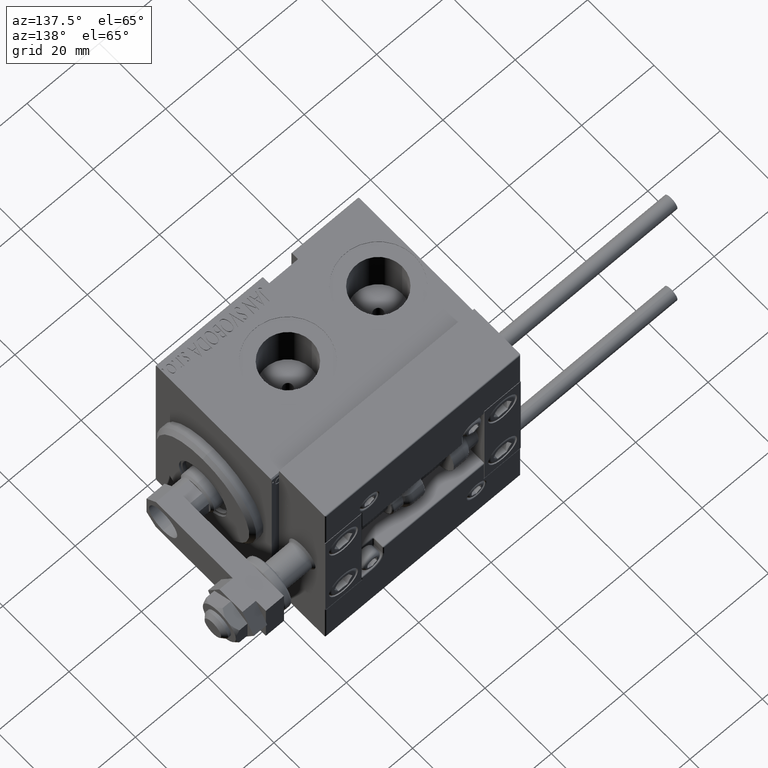
[diagram: clean part render]
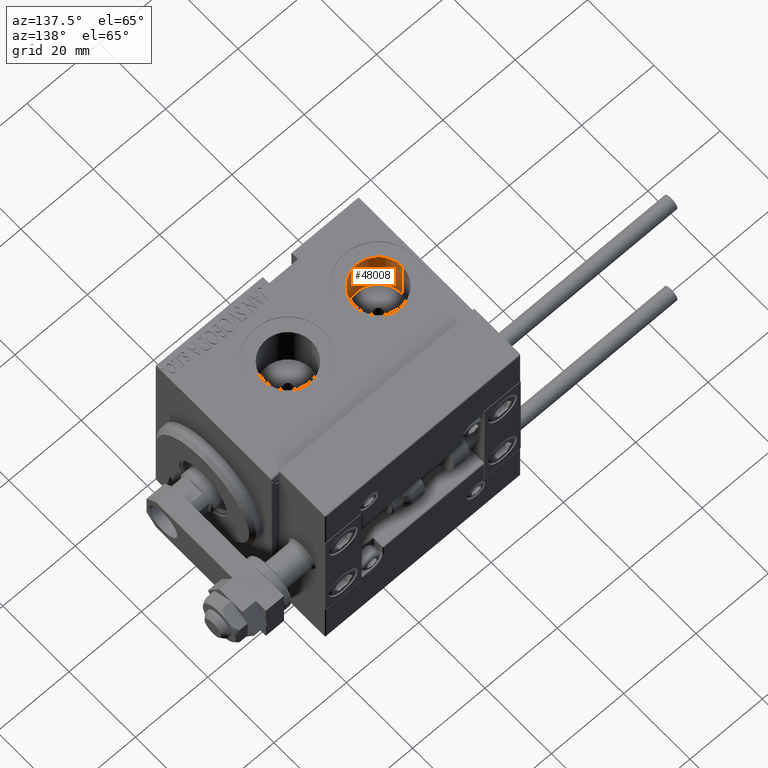
[diagram: same view with one face highlighted and labeled with its STEP entity id]
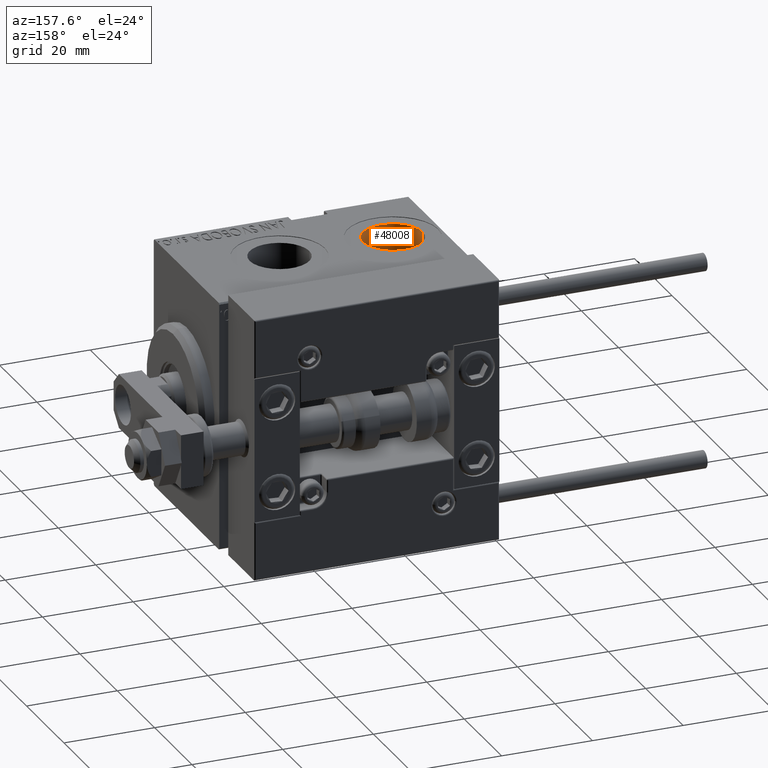
[diagram: same view with one face highlighted and labeled with its STEP entity id]
A machine part, auxiliary view. The second image highlights one B-rep face of the part: STEP entity #48008.
A second angle (auxiliary view) of the same face is appended — the face is thin or edge-on in the first view.
In plain terms, the highlighted cylindrical surface (edge-blend (fillet) strip) has radius 6.58 mm, axis along (0, 0, 1).
Its self-contained STEP definition (entity closure, byte-faithful):
#1870 = LINE ( 'NONE', #29590, #9685 ) ;
#2786 = DIRECTION ( 'NONE',  ( -0.000000000000000000, -0.000000000000000000, 1.000000000000000000 ) ) ;
#4565 = CARTESIAN_POINT ( 'NONE',  ( 45.50000000000000000, 0.000000000000000000, 14.23999999999999666 ) ) ;
#5557 = DIRECTION ( 'NONE',  ( 0.000000000000000000, 0.000000000000000000, 1.000000000000000000 ) ) ;
#6546 = AXIS2_PLACEMENT_3D ( 'NONE', #14690, #2786, #15195 ) ;
#8510 = VERTEX_POINT ( 'NONE', #18065 ) ;
#9202 = AXIS2_PLACEMENT_3D ( 'NONE', #16954, #5557, #32258 ) ;
#9299 = CARTESIAN_POINT ( 'NONE',  ( 38.91999999999999460, 8.058175938389585489E-16, 14.23999999999999666 ) ) ;
#9685 = VECTOR ( 'NONE', #20779, 1000.000000000000000 ) ;
#12066 = EDGE_CURVE ( 'NONE', #32979, #8510, #33183, .T. ) ;
#12373 = CARTESIAN_POINT ( 'NONE',  ( 38.91999999999999460, 8.058175938389585489E-16, 14.23999999999999666 ) ) ;
#14162 = CARTESIAN_POINT ( 'NONE',  ( 52.07999999999999829, 0.000000000000000000, 14.23999999999999666 ) ) ;
#14231 = VERTEX_POINT ( 'NONE', #9299 ) ;
#14690 = CARTESIAN_POINT ( 'NONE',  ( 45.50000000000000000, 0.000000000000000000, 14.23999999999999666 ) ) ;
#15019 = DIRECTION ( 'NONE',  ( -0.000000000000000000, -0.000000000000000000, 1.000000000000000000 ) ) ;
#15195 = DIRECTION ( 'NONE',  ( 1.000000000000000000, 0.000000000000000000, 0.000000000000000000 ) ) ;
#16954 = CARTESIAN_POINT ( 'NONE',  ( 45.50000000000000000, 0.000000000000000000, 27.39999999999999858 ) ) ;
#18065 = CARTESIAN_POINT ( 'NONE',  ( 38.91999999999999460, 8.058175938389585489E-16, 27.39999999999999858 ) ) ;
#18688 = VECTOR ( 'NONE', #15019, 1000.000000000000000 ) ;
#19080 = FACE_OUTER_BOUND ( 'NONE', #39201, .T. ) ;
#20779 = DIRECTION ( 'NONE',  ( -0.000000000000000000, -0.000000000000000000, 1.000000000000000000 ) ) ;
#21059 = VERTEX_POINT ( 'NONE', #14162 ) ;
#23064 = AXIS2_PLACEMENT_3D ( 'NONE', #4565, #39505, #47789 ) ;
#25571 = CIRCLE ( 'NONE', #23064, 6.580000000000002736 ) ;
#28747 = EDGE_CURVE ( 'NONE', #21059, #14231, #25571, .T. ) ;
#29590 = CARTESIAN_POINT ( 'NONE',  ( 52.07999999999999829, 0.000000000000000000, 14.23999999999999666 ) ) ;
#32258 = DIRECTION ( 'NONE',  ( 1.000000000000000000, 0.000000000000000000, 0.000000000000000000 ) ) ;
#32979 = VERTEX_POINT ( 'NONE', #40564 ) ;
#33183 = CIRCLE ( 'NONE', #9202, 6.580000000000002736 ) ;
#36434 = EDGE_CURVE ( 'NONE', #14231, #8510, #40047, .T. ) ;
#39057 = ORIENTED_EDGE ( 'NONE', *, *, #12066, .T. ) ;
#39201 = EDGE_LOOP ( 'NONE', ( #48153, #42459, #42406, #39057 ) ) ;
#39505 = DIRECTION ( 'NONE',  ( 0.000000000000000000, 0.000000000000000000, 1.000000000000000000 ) ) ;
#40047 = LINE ( 'NONE', #12373, #18688 ) ;
#40564 = CARTESIAN_POINT ( 'NONE',  ( 52.07999999999999829, 0.000000000000000000, 27.39999999999999858 ) ) ;
#41157 = EDGE_CURVE ( 'NONE', #21059, #32979, #1870, .T. ) ;
#42406 = ORIENTED_EDGE ( 'NONE', *, *, #41157, .T. ) ;
#42459 = ORIENTED_EDGE ( 'NONE', *, *, #28747, .F. ) ;
#43121 = CYLINDRICAL_SURFACE ( 'NONE', #6546, 6.580000000000002736 ) ;
#47789 = DIRECTION ( 'NONE',  ( 1.000000000000000000, 0.000000000000000000, 0.000000000000000000 ) ) ;
#48008 = ADVANCED_FACE ( 'NONE', ( #19080 ), #43121, .F. ) ;
#48153 = ORIENTED_EDGE ( 'NONE', *, *, #36434, .F. ) ;